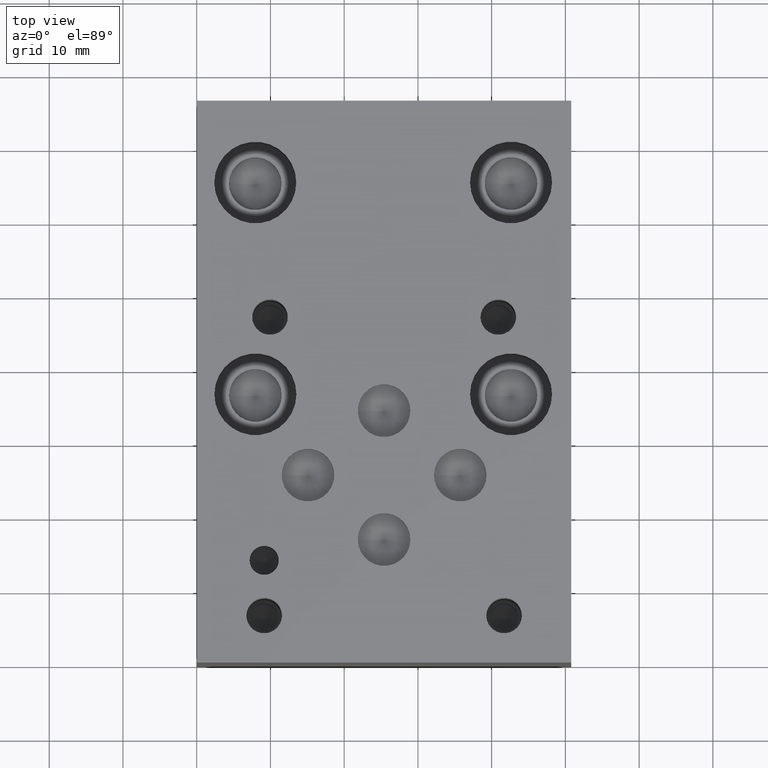
[diagram: clean part render]
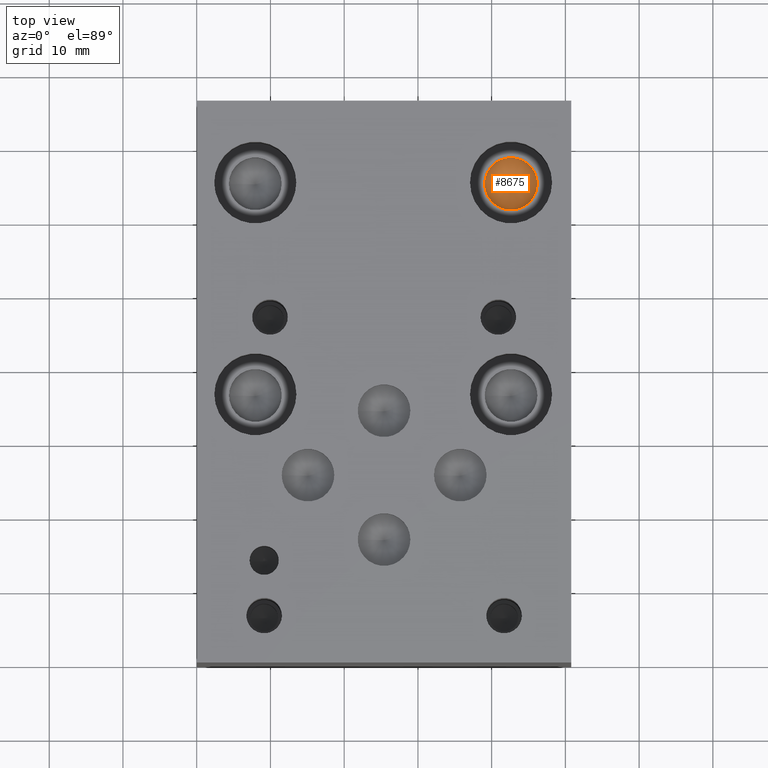
[diagram: same view with one face highlighted and labeled with its STEP entity id]
A machine part, top view. The second image highlights one B-rep face of the part: STEP entity #8675.
In plain terms, the highlighted conical surface has half-angle 60 deg.
Its self-contained STEP definition (entity closure, byte-faithful):
#26=CONICAL_SURFACE('',#9114,1.78435,1.0471975511966);
#105=CIRCLE('',#9115,3.5687);
#106=CIRCLE('',#9116,3.5687);
#914=FACE_OUTER_BOUND('',#1394,.T.);
#1394=EDGE_LOOP('',(#7411,#7412,#7413,#7414));
#2319=LINE('',#14394,#3214);
#3214=VECTOR('',#10851,1.78435);
#3994=VERTEX_POINT('',#14390);
#3995=VERTEX_POINT('',#14391);
#3996=VERTEX_POINT('',#14393);
#5160=EDGE_CURVE('',#3994,#3995,#105,.T.);
#5161=EDGE_CURVE('',#3995,#3996,#2319,.T.);
#5162=EDGE_CURVE('',#3995,#3994,#106,.T.);
#7411=ORIENTED_EDGE('',*,*,#5160,.T.);
#7412=ORIENTED_EDGE('',*,*,#5161,.T.);
#7413=ORIENTED_EDGE('',*,*,#5161,.F.);
#7414=ORIENTED_EDGE('',*,*,#5162,.T.);
#8675=ADVANCED_FACE('',(#914),#26,.F.);
#9114=AXIS2_PLACEMENT_3D('',#14389,#10847,#10848);
#9115=AXIS2_PLACEMENT_3D('',#14392,#10849,#10850);
#9116=AXIS2_PLACEMENT_3D('',#14395,#10852,#10853);
#10847=DIRECTION('center_axis',(0.,0.,1.));
#10848=DIRECTION('ref_axis',(1.,0.,0.));
#10849=DIRECTION('center_axis',(0.,0.,1.));
#10850=DIRECTION('ref_axis',(1.,0.,0.));
#10851=DIRECTION('',(0.866025403784438,1.06057523872491E-16,-0.5));
#10852=DIRECTION('center_axis',(0.,0.,1.));
#10853=DIRECTION('ref_axis',(1.,0.,0.));
#14389=CARTESIAN_POINT('Origin',(42.6212,65.1002,25.4844150471715));
#14390=CARTESIAN_POINT('',(46.1899,65.1002,26.51461));
#14391=CARTESIAN_POINT('',(39.0525,65.1002,26.51461));
#14392=CARTESIAN_POINT('Origin',(42.6212,65.1002,26.51461));
#14393=CARTESIAN_POINT('',(42.6212,65.1002,24.454220094343));
#14394=CARTESIAN_POINT('',(40.83685,65.1002,25.4844150471715));
#14395=CARTESIAN_POINT('Origin',(42.6212,65.1002,26.51461));